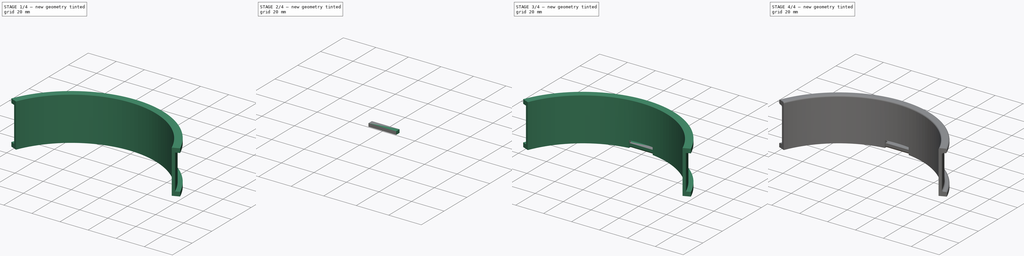
[diagram: build sequence overview — one tinted view per stage of 4, left to right]
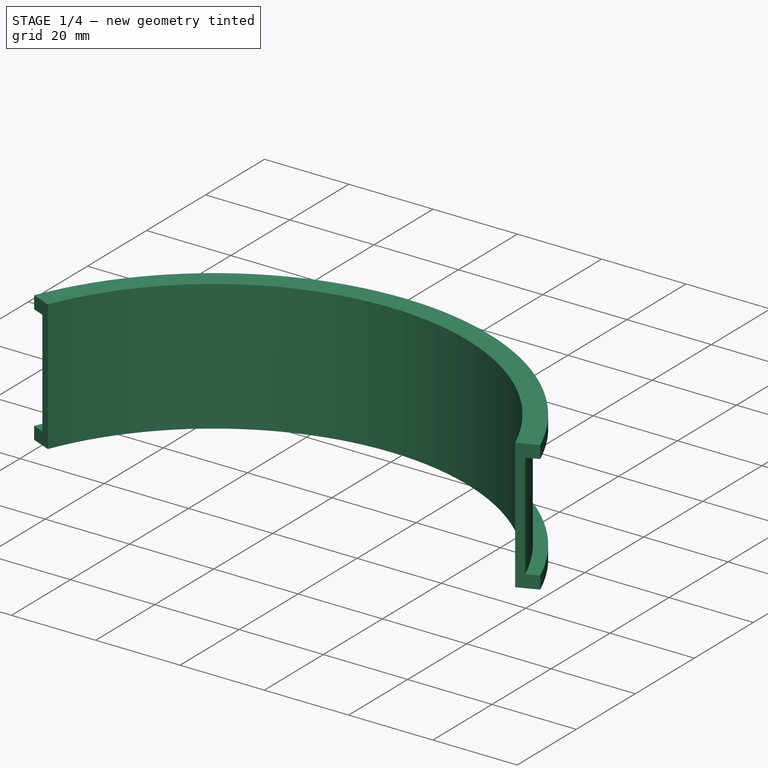
[diagram: stage 1 of 4 — iso view after this stage's code; geometry added in this stage tinted green]
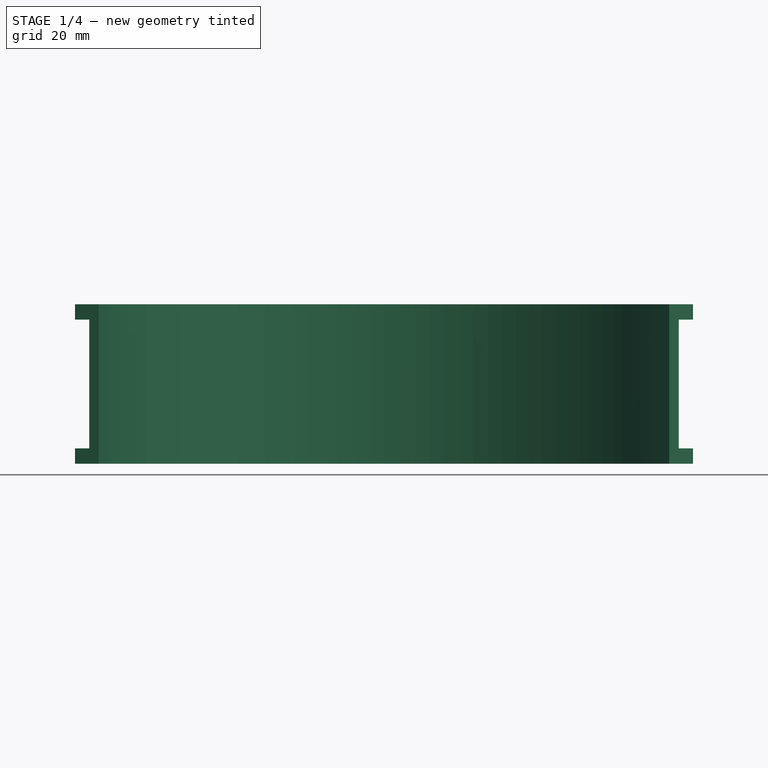
[diagram: stage 1 of 4 — front view after this stage's code; geometry added in this stage tinted green]
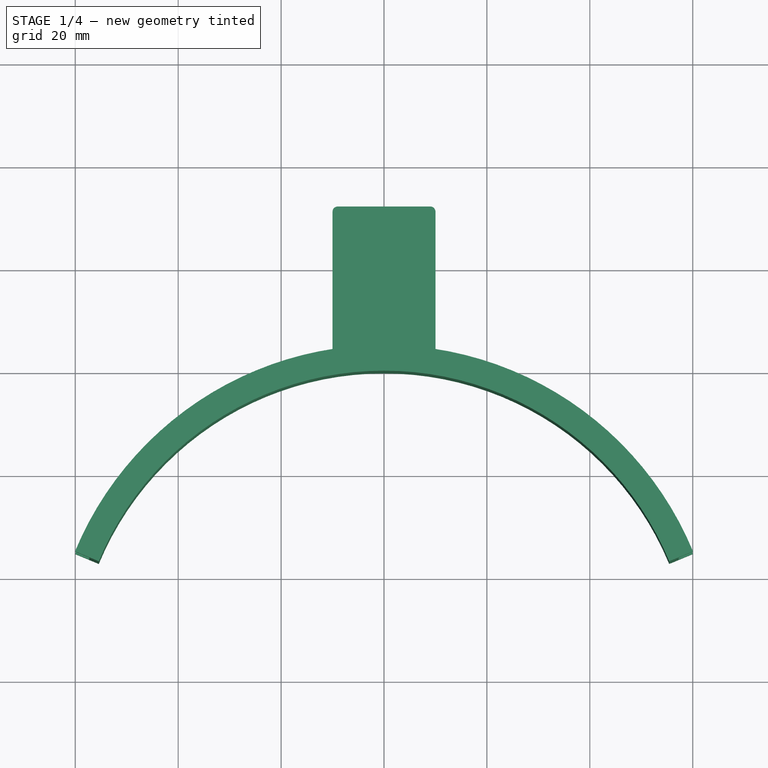
[diagram: stage 1 of 4 — top view after this stage's code; geometry added in this stage tinted green]
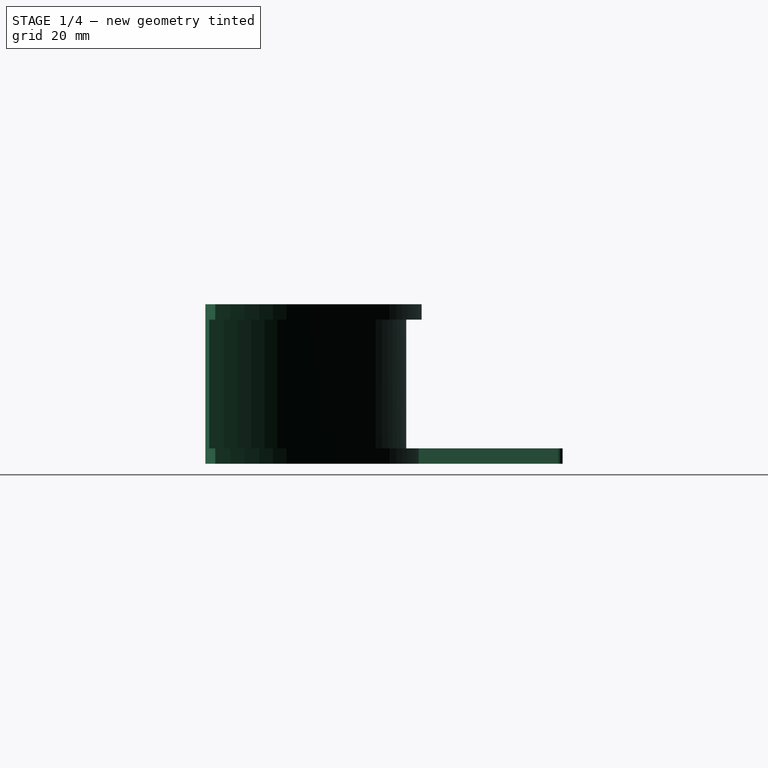
[diagram: stage 1 of 4 — right view after this stage's code; geometry added in this stage tinted green]
FCSTD DOCUMENT  (FreeCAD 0.19R)
Label: Mouse_Headwear_Mount
License: All rights reserved
LicenseURL: http://en.wikipedia.org/wiki/All_rights_reserved
objects: Sketcher::SketchObject×6, Part::Extrusion×4, Part::Fillet×3, Part::Cut×3, Part::Chamfer×2, Part::Sweep×1, Part::MultiFuse×1
note: 20 computed .brp shape members not serialized (recipe doc carries the construction recipe); baked Part::Feature solids carry a one-line shape summary decoded from their .brp

FEATURE [Sketcher::SketchObject] Sketch
  sketch-geometry (1):
    g0: ArcOfCircle CenterX=0 CenterY=0 CenterZ=0 NormalX=0 NormalY=0 NormalZ=1 AngleXU=0 Radius=60 StartAngle=0.392699 EndAngle=2.74889
  constraints (4):
    c: Coincident(g0,g-1)
    c: Diameter(g0) = 120
    c: Horizontal(g0,g0)
    c: Angle(g0) = 2.35619
FEATURE [Sketcher::SketchObject] Sketch002
  ExternalGeometry = -> [Sketch]
  MapMode = 12
  Placement = pos=(0,-3.6e-15,0) rot=(0.962637,0.19148,0.19148;1.60887rad)
  Support = -> [Sketch]
  sketch-geometry (8):
    g0: LineSegment StartX=60 StartY=0 StartZ=0 EndX=60 EndY=31 EndZ=0
    g1: LineSegment StartX=62 StartY=28 StartZ=0 EndX=62 EndY=3 EndZ=0
    g2: LineSegment StartX=62 StartY=3 StartZ=0 EndX=65 EndY=3 EndZ=0
    g3: LineSegment StartX=65 StartY=3 StartZ=0 EndX=65 EndY=0 EndZ=0
    g4: LineSegment StartX=65 StartY=0 StartZ=0 EndX=60 EndY=0 EndZ=0
    g5: LineSegment StartX=60 StartY=31 StartZ=0 EndX=65 EndY=31 EndZ=0
    g6: LineSegment StartX=65 StartY=31 StartZ=0 EndX=65 EndY=28 EndZ=0
    g7: LineSegment StartX=65 StartY=28 StartZ=0 EndX=62 EndY=28 EndZ=0
  constraints (23):
    c: Coincident(g0,g-4)
    c: Vertical(g0)
    c: Coincident(g1,g2)
    c: Horizontal(g2)
    c: Coincident(g2,g3)
    c: Vertical(g3)
    c: Coincident(g3,g4)
    c: Coincident(g4,g0)
    c: Horizontal(g4)
    c: Vertical(g1)
    c: DistanceY(g1,g1) = 25
    c: DistanceX(g2,g2) = 3
    c: DistanceX(g0,g1) = 2
    c: DistanceY(g3,g3) = 3
    c: Coincident(g5,g0)
    c: Horizontal(g5)
    c: Coincident(g6,g5)
    c: Vertical(g6)
    c: Coincident(g7,g6)
    c: Coincident(g7,g1)
    c: Horizontal(g7)
    c: DistanceY(g1,g0) = 3
    c: DistanceX(g1,g6) = 3
FEATURE [Part::Sweep] Sweep
  Frenet = false
  Sections = -> [Sketch002]
  Solid = true
  Spine = -> Sketch [Edge1]
  Transition = 1
FEATURE [Sketcher::SketchObject] Sketch003
  ExternalGeometry = -> [Sweep]
  sketch-geometry (4):
    g0: LineSegment StartX=-10 StartY=64.4002 StartZ=0 EndX=-10 EndY=92.4002 EndZ=0
    g1: LineSegment StartX=-10 StartY=92.4002 StartZ=0 EndX=10 EndY=92.4002 EndZ=0
    g2: LineSegment StartX=10 StartY=92.4002 StartZ=0 EndX=10 EndY=64.4002 EndZ=0
    g3: ArcOfCircle CenterX=-1.73049e-05 CenterY=0.000224715 CenterZ=0 NormalX=0 NormalY=0 NormalZ=1 AngleXU=0 Radius=65.1718 StartAngle=1.41675 EndAngle=1.72485
  constraints (10):
    c: Vertical(g0)
    c: Coincident(g0,g1)
    c: Horizontal(g1)
    c: Coincident(g1,g2)
    c: Vertical(g2)
    c: DistanceY(g0,g0) = 28
    c: DistanceX(g1,g1) = 20
    c: Coincident(g3,g0)
    c: Coincident(g3,g2)
    c: DistanceX(g0,g-1) = 10
FEATURE [Part::Extrusion] Extrude
  Base = -> Sketch003
  Dir = (0,0,1)
  DirMode = 2
  FaceMakerClass = Part::FaceMakerBullseye
  LengthFwd = 3
  LengthRev = 0
  Solid = true
  Symmetric = false
FEATURE [Part::Fillet] Fillet
  Base = -> Extrude
  Edges = 2 edges r=1: [Edge2,Edge5]
FEATURE [Part::MultiFuse] Fusion
  Refine = true
  Shapes = -> [Fillet,Sweep]
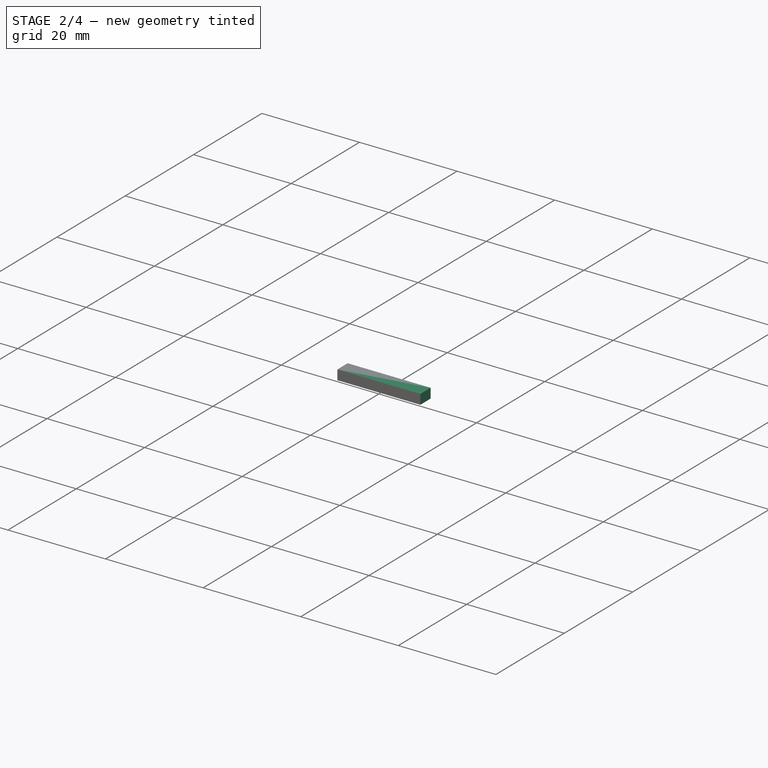
[diagram: stage 2 of 4 — iso view after this stage's code; geometry added in this stage tinted green]
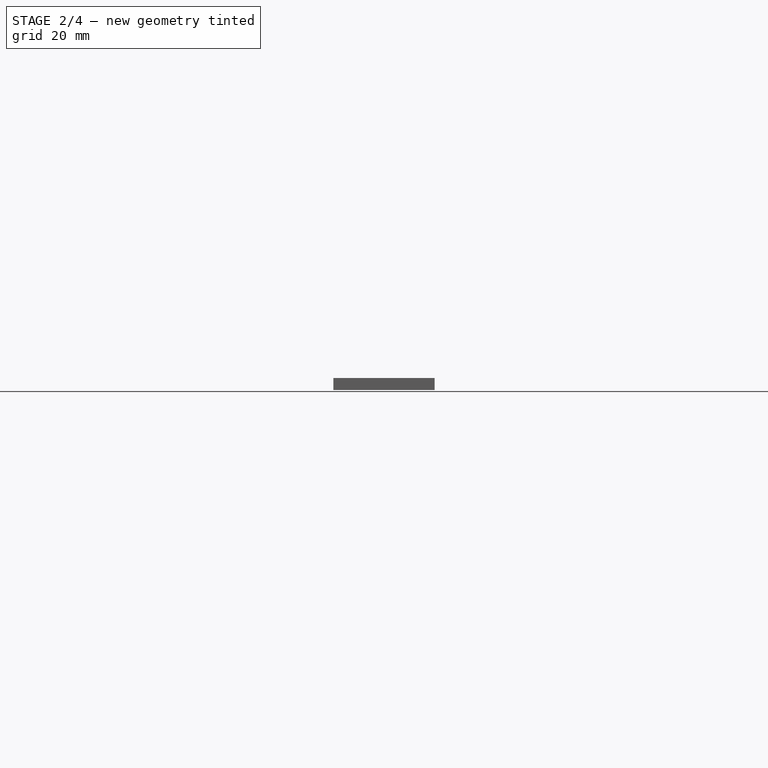
[diagram: stage 2 of 4 — front view after this stage's code; geometry added in this stage tinted green]
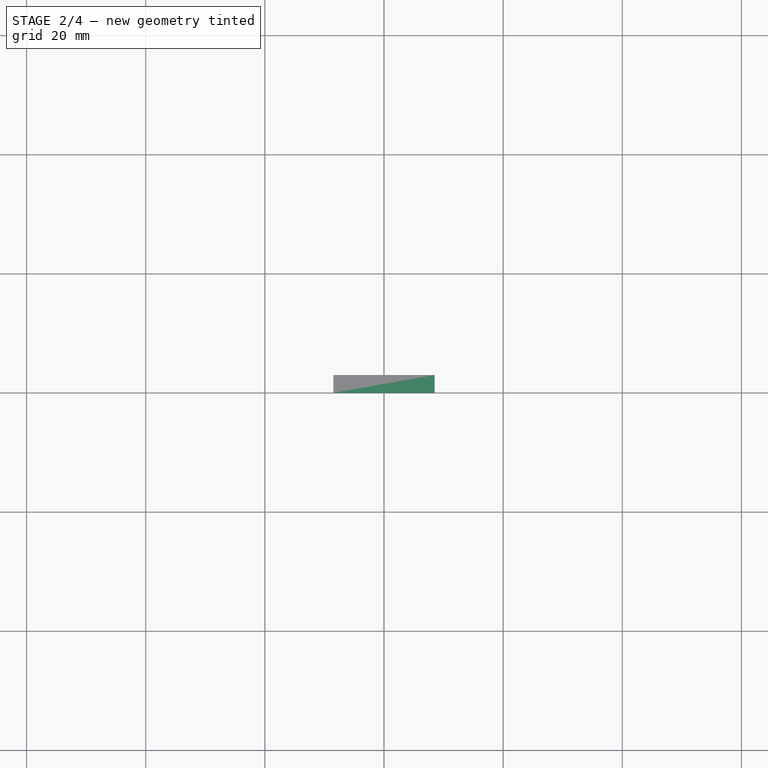
[diagram: stage 2 of 4 — top view after this stage's code; geometry added in this stage tinted green]
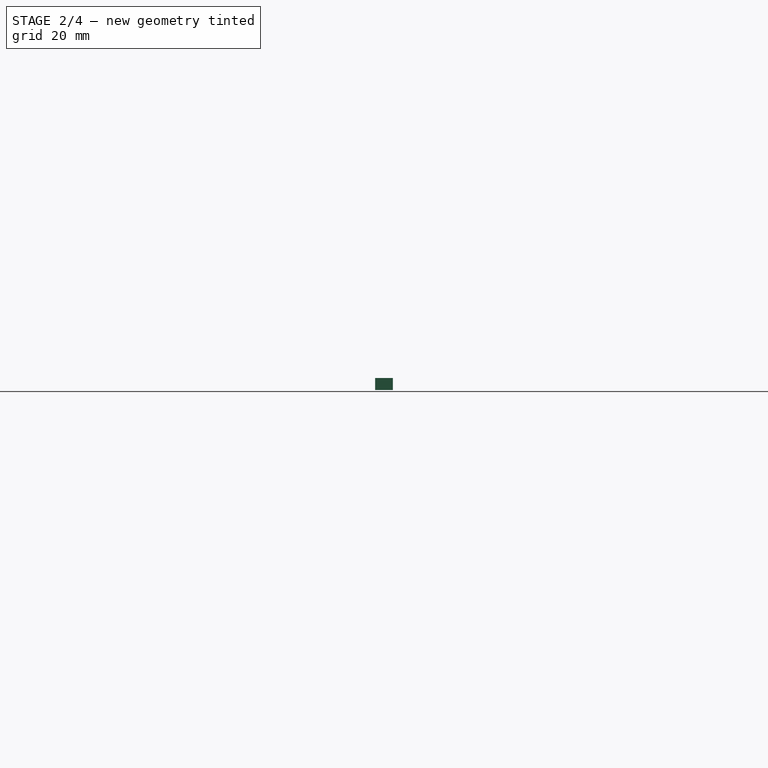
[diagram: stage 2 of 4 — right view after this stage's code; geometry added in this stage tinted green]
FEATURE [Sketcher::SketchObject] Sketch007
  ExternalGeometry = -> [Fusion]
  MapMode = 5
  Placement = pos=(0,0,3) rot=(0,0,1;0rad)
  Support = -> [Fusion]
  expr: Constraints[12] = 17 / 2
  sketch-geometry (4):
    g0: LineSegment StartX=-8.5 StartY=-60 StartZ=0 EndX=8.5 EndY=-60 EndZ=0
    g1: ArcOfCircle CenterX=3.7e-15 CenterY=3.54e-14 CenterZ=0 NormalX=0 NormalY=0 NormalZ=1 AngleXU=0 Radius=60 StartAngle=4.57024 EndAngle=4.85453
    g2: LineSegment StartX=-8.5 StartY=-59.3949 StartZ=0 EndX=-8.5 EndY=-60 EndZ=0
    g3: LineSegment StartX=8.5 StartY=-59.3949 StartZ=0 EndX=8.5 EndY=-60 EndZ=0
  constraints (13):
    c: Horizontal(g0)
    c: PointOnObject(g1,g-3)
    c: PointOnObject(g1,g-3)
    c: Tangent(g1,g-3)
    c: Coincident(g2,g1)
    c: Coincident(g2,g0)
    c: Vertical(g2)
    c: Coincident(g3,g1)
    c: Coincident(g3,g0)
    c: Vertical(g3)
    c: Tangent(g1,g0)
    c: DistanceX(g0,g0) = 17
    c: DistanceX(g-1,g0) = 8.5
FEATURE [Part::Extrusion] Extrude003
  Base = -> Sketch007
  Dir = (0,0,1)
  DirMode = 2
  FaceMakerClass = Part::FaceMakerBullseye
  LengthFwd = 0
  LengthRev = 5
  Solid = true
  Symmetric = false
FEATURE [Part::Cut] Cut
  Base = -> Fusion
  Refine = true
  Tool = -> Extrude003
FEATURE [Sketcher::SketchObject] Sketch008
  ExternalGeometry = -> [Cut]
  MapMode = 5
  Placement = pos=(0,60,0) rot=(1,0,0;1.5708rad)
  Support = -> [Cut]
  sketch-geometry (4):
    g0: LineSegment StartX=8.5 StartY=5 StartZ=0 EndX=-8.5 EndY=5 EndZ=0
    g1: LineSegment StartX=-8.5 StartY=5 StartZ=0 EndX=-8.5 EndY=3 EndZ=0
    g2: LineSegment StartX=-8.5 StartY=3 StartZ=0 EndX=8.5 EndY=3 EndZ=0
    g3: LineSegment StartX=8.5 StartY=3 StartZ=0 EndX=8.5 EndY=5 EndZ=0
  constraints (10):
    c: Coincident(g0,g1)
    c: Coincident(g1,g2)
    c: Coincident(g2,g3)
    c: Coincident(g3,g0)
    c: Horizontal(g2)
    c: Vertical(g1)
    c: Vertical(g3)
    c: Coincident(g0,g-3)
    c: Coincident(g-3,g0)
    c: DistanceY(g1,g1) = 2
FEATURE [Part::Extrusion] Extrude004
  Base = -> Sketch008
  Dir = (0,-1,2e-16)
  DirMode = 2
  FaceMakerClass = Part::FaceMakerBullseye
  LengthFwd = 0
  LengthRev = 3
  Solid = true
  Symmetric = false
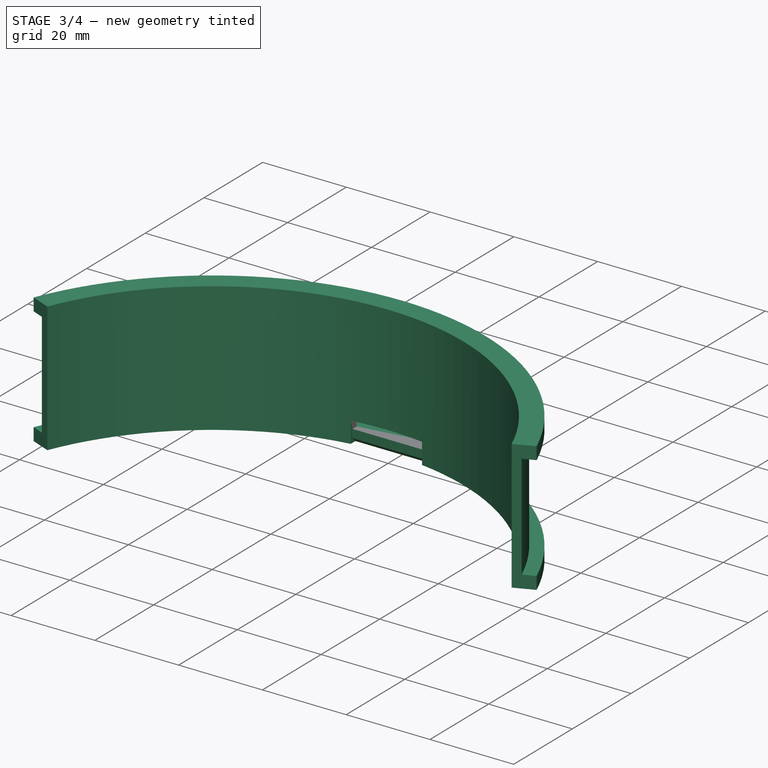
[diagram: stage 3 of 4 — iso view after this stage's code; geometry added in this stage tinted green]
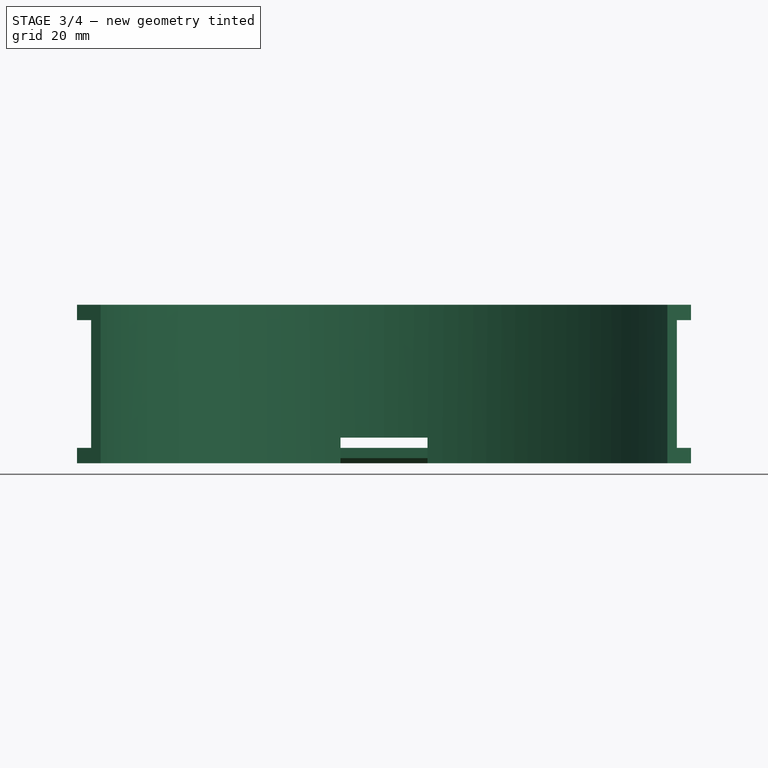
[diagram: stage 3 of 4 — front view after this stage's code; geometry added in this stage tinted green]
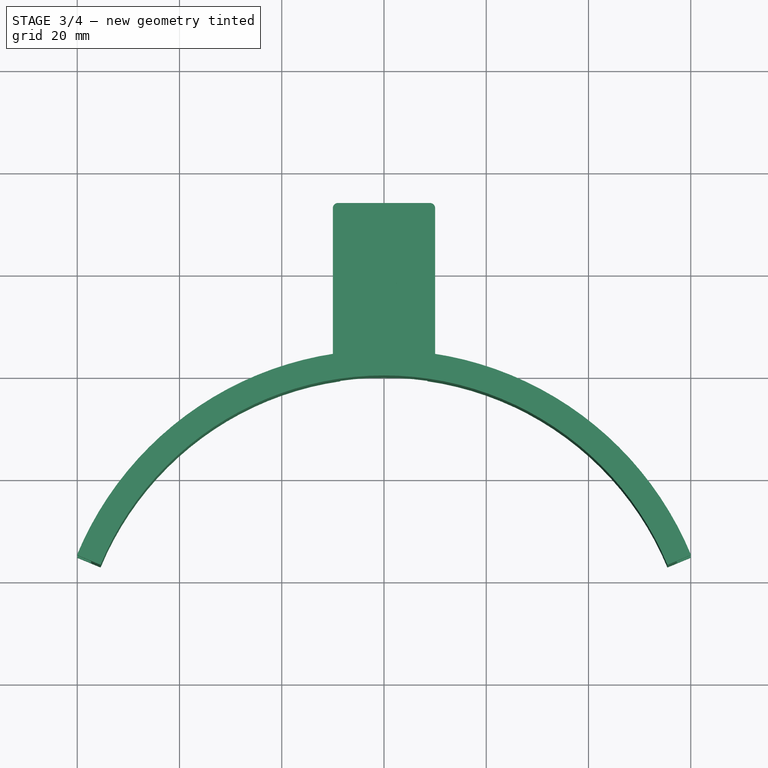
[diagram: stage 3 of 4 — top view after this stage's code; geometry added in this stage tinted green]
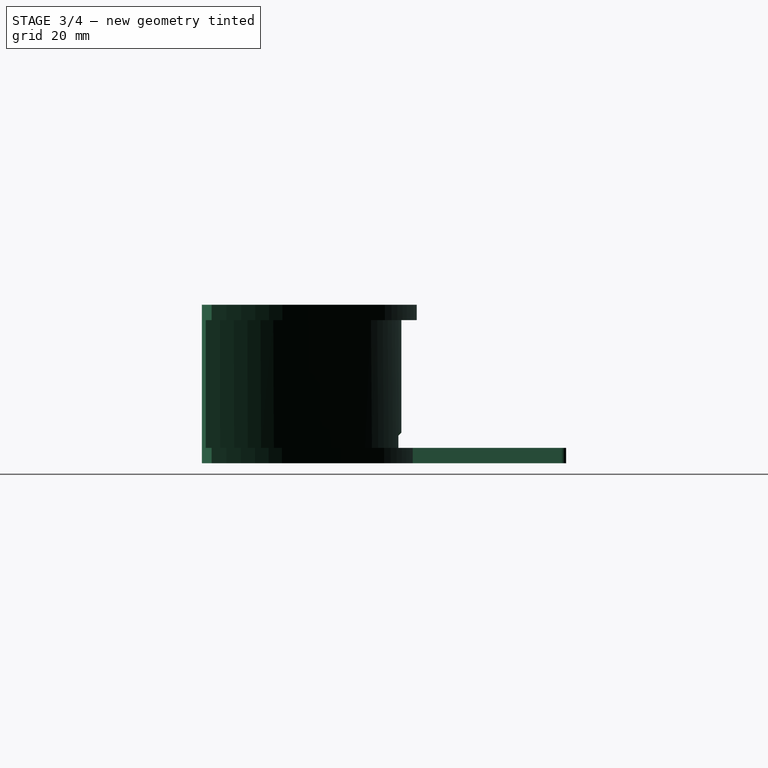
[diagram: stage 3 of 4 — right view after this stage's code; geometry added in this stage tinted green]
FEATURE [Sketcher::SketchObject] Sketch005
  MapMode = 5
  Placement = pos=(0,0,3) rot=(0,0,1;0rad)
  sketch-geometry (4):
    g0: ArcOfCircle CenterX=0 CenterY=79.2262 CenterZ=0 NormalX=0 NormalY=0 NormalZ=1 AngleXU=0 Radius=2.5 StartAngle=1.98231 EndAngle=7.44246
    g1: ArcOfCircle CenterX=0 CenterY=83.5175 CenterZ=0 NormalX=0 NormalY=0 NormalZ=1 AngleXU=0 Radius=1 StartAngle=7.2e-15 EndAngle=3.14159
    g2: LineSegment StartX=-1 StartY=81.5175 StartZ=0 EndX=-1 EndY=83.5175 EndZ=0
    g3: LineSegment StartX=1 StartY=81.5175 StartZ=0 EndX=1 EndY=83.5175 EndZ=0
  constraints (13):
    c: PointOnObject(g0,g-2)
    c: PointOnObject(g1,g-2)
    c: Coincident(g2,g0)
    c: Coincident(g2,g1)
    c: Vertical(g2)
    c: Coincident(g3,g0)
    c: Coincident(g3,g1)
    c: Vertical(g3)
    c: Angle(g1) = 3.14159
    c: Horizontal(g1,g1)
    c: Diameter(g0) = 5
    c: Diameter(g1) = 2
    c: DistanceY(g3,g3) = 2
FEATURE [Part::Extrusion] Extrude002
  Base = -> Sketch005
  Dir = (0,0,1)
  DirMode = 2
  FaceMakerClass = Part::FaceMakerBullseye
  LengthFwd = 0
  LengthRev = 3
  Solid = true
  Symmetric = false
FEATURE [Part::Cut] Cut001
  Base = -> Cut
  Refine = true
  Tool = -> Extrude004
FEATURE [Part::Chamfer] Chamfer
  Base = -> Cut001
  Edges = 2 edges r=1: [Edge33,Edge39]
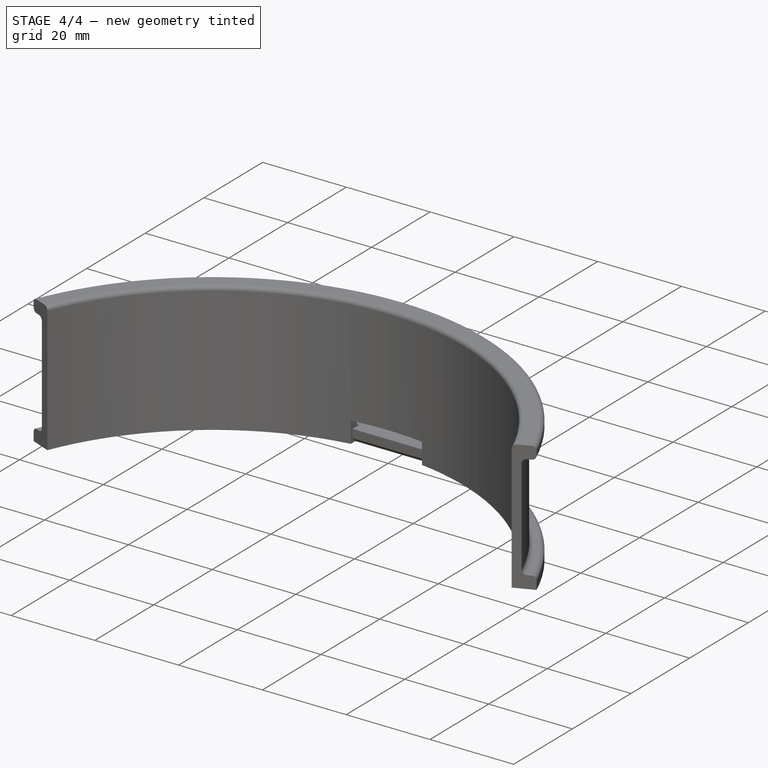
[diagram: stage 4 of 4 — iso view after this stage's code; geometry added in this stage tinted green]
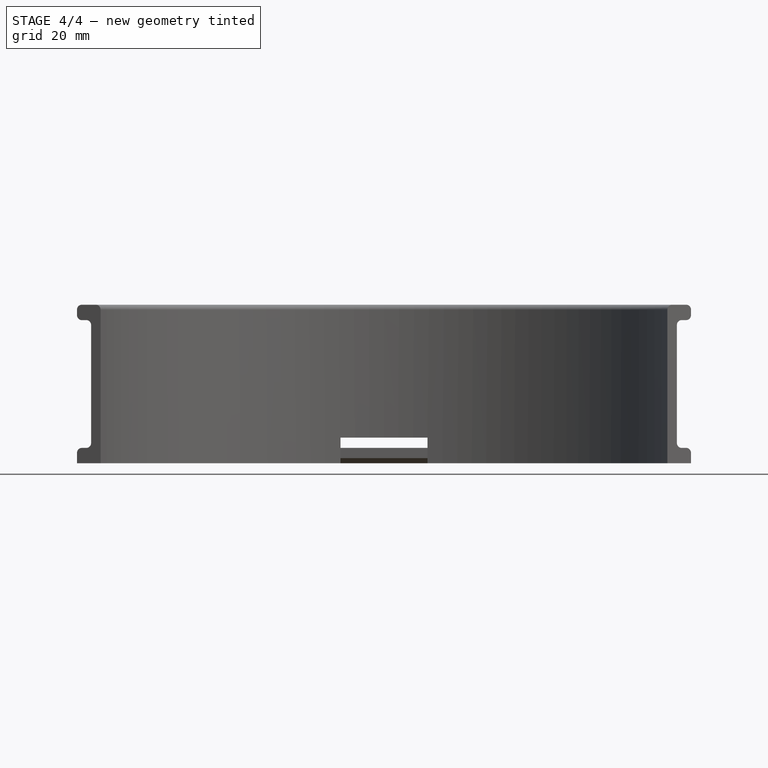
[diagram: stage 4 of 4 — front view after this stage's code; geometry added in this stage tinted green]
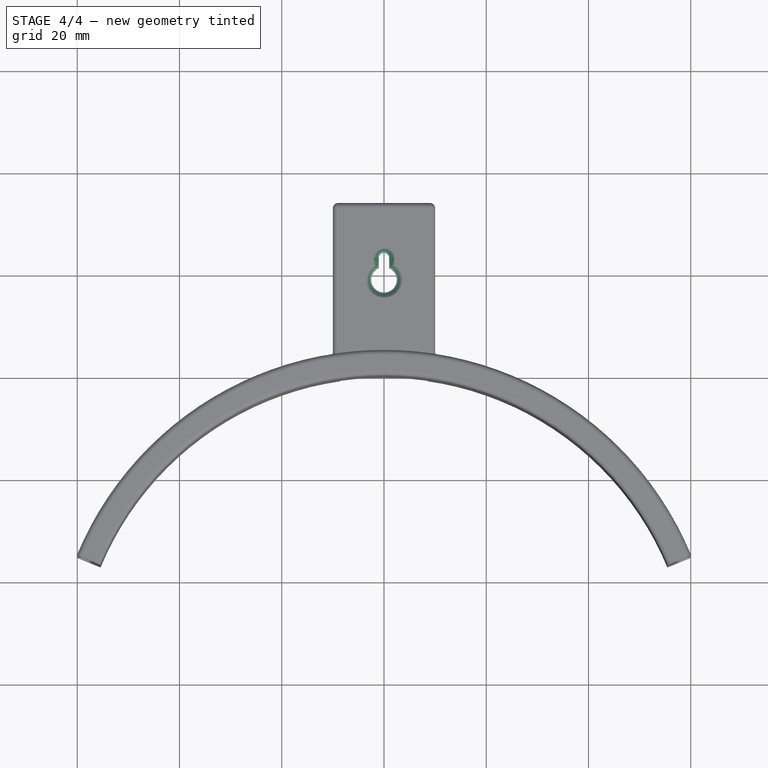
[diagram: stage 4 of 4 — top view after this stage's code; geometry added in this stage tinted green]
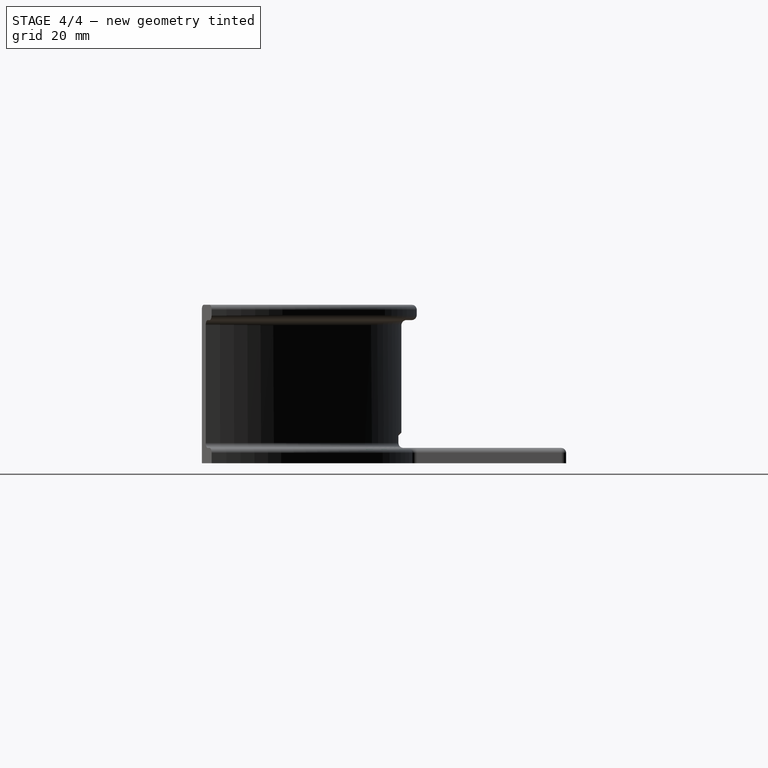
[diagram: stage 4 of 4 — right view after this stage's code; geometry added in this stage tinted green]
FEATURE [Part::Cut] Cut002
  Base = -> Chamfer
  Tool = -> Extrude002
FEATURE [Part::Chamfer] Chamfer001
  Base = -> Cut002
  Edges = 4 edges r=1: [Edge70,Edge72,Edge74,Edge75]
FEATURE [Part::Fillet] Fillet001
  Base = -> Chamfer001
  Edges = 2 edges r=1: [Edge76,Edge84]
FEATURE [Part::Fillet] Fillet002
  Base = -> Fillet001
  Edges = 8 edges r=1: [Edge23,Edge37,Edge67,Edge82,Edge84,Edge89,Edge90,Edge91]
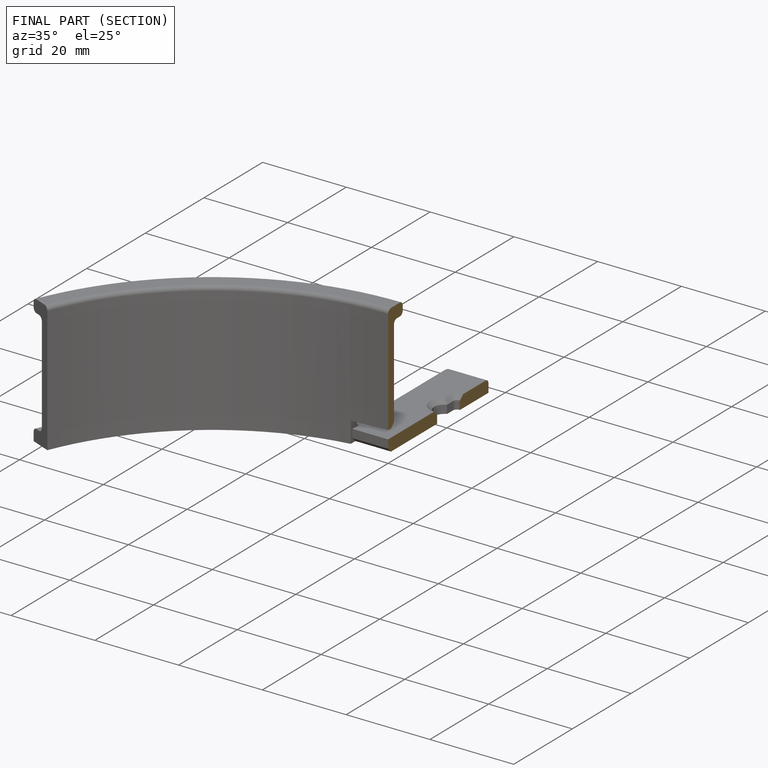
[diagram: finished part — half-section view (interior)]
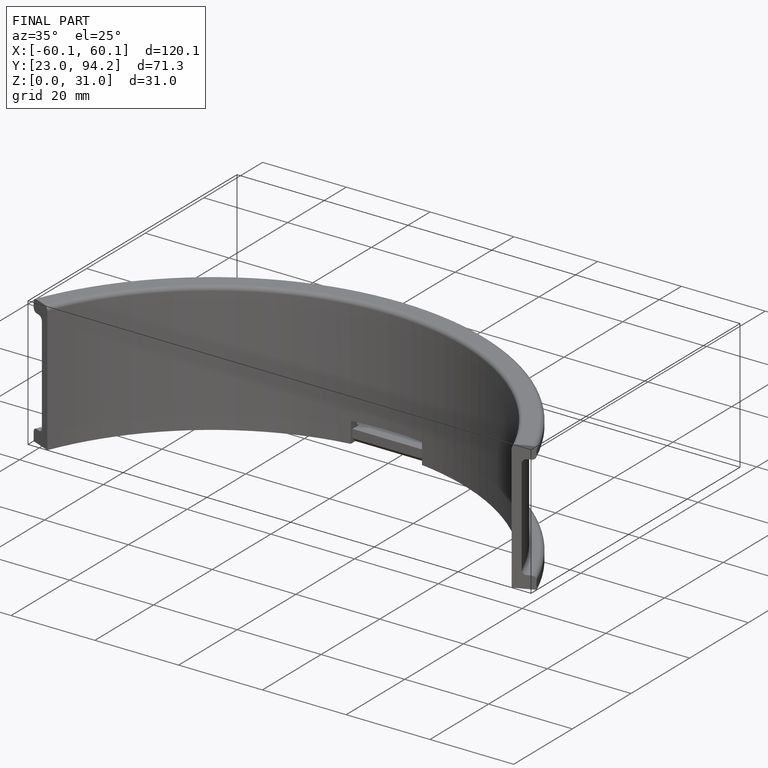
[diagram: finished part — iso view with bounding-box wireframe]
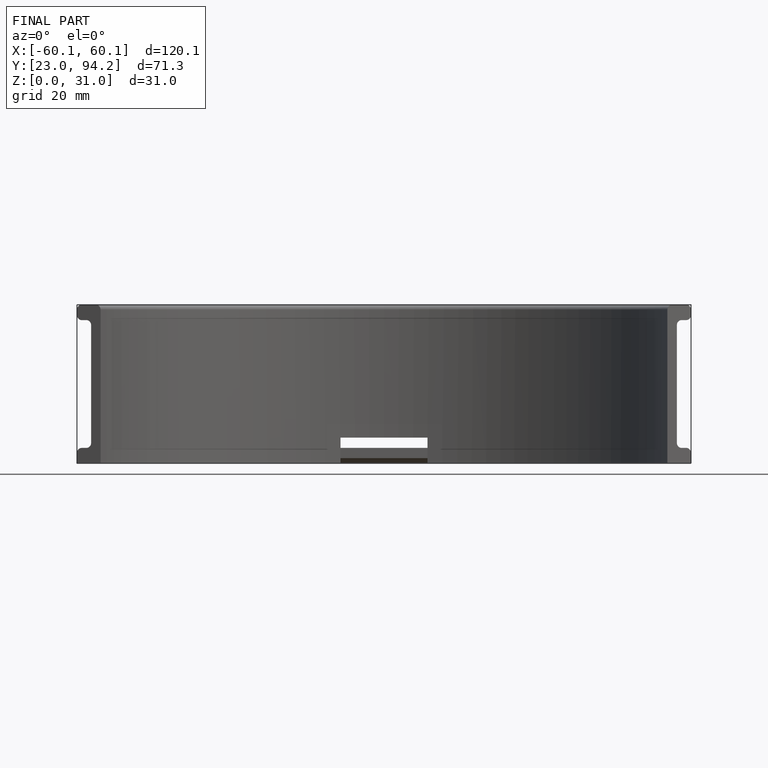
[diagram: finished part — front view with bounding-box wireframe]
